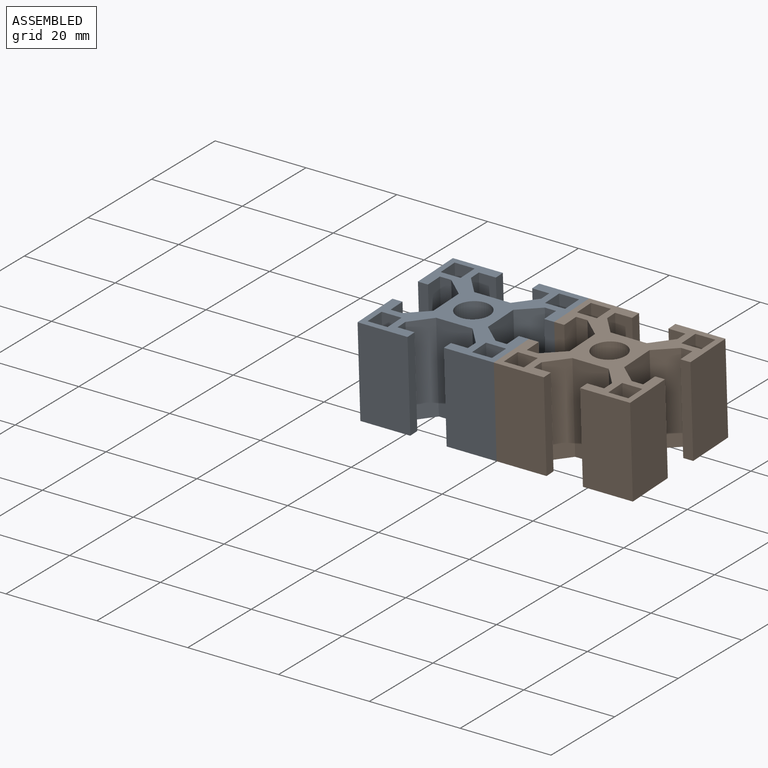
[diagram: assembled view]
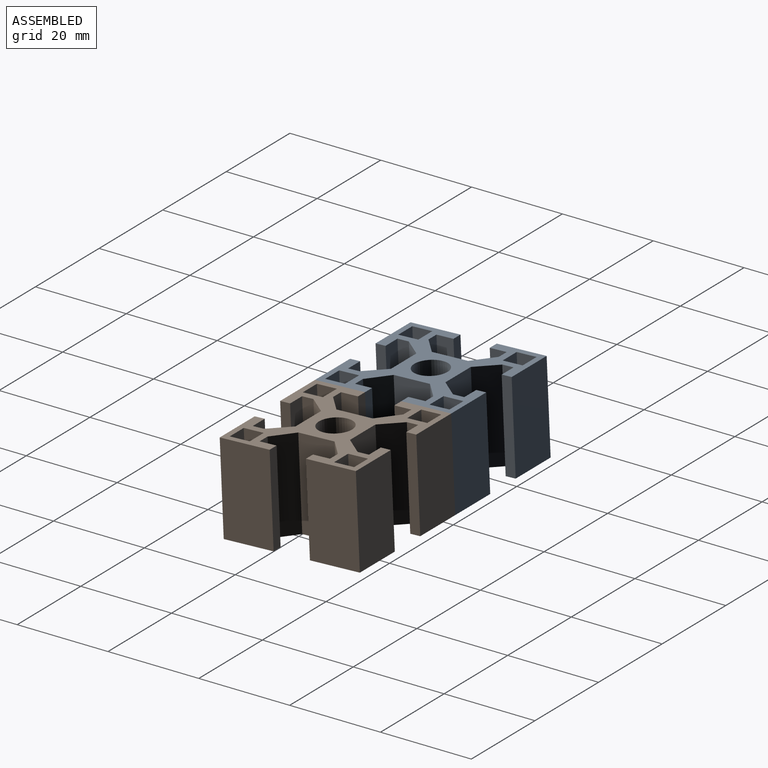
[diagram: assembled view, second angle]
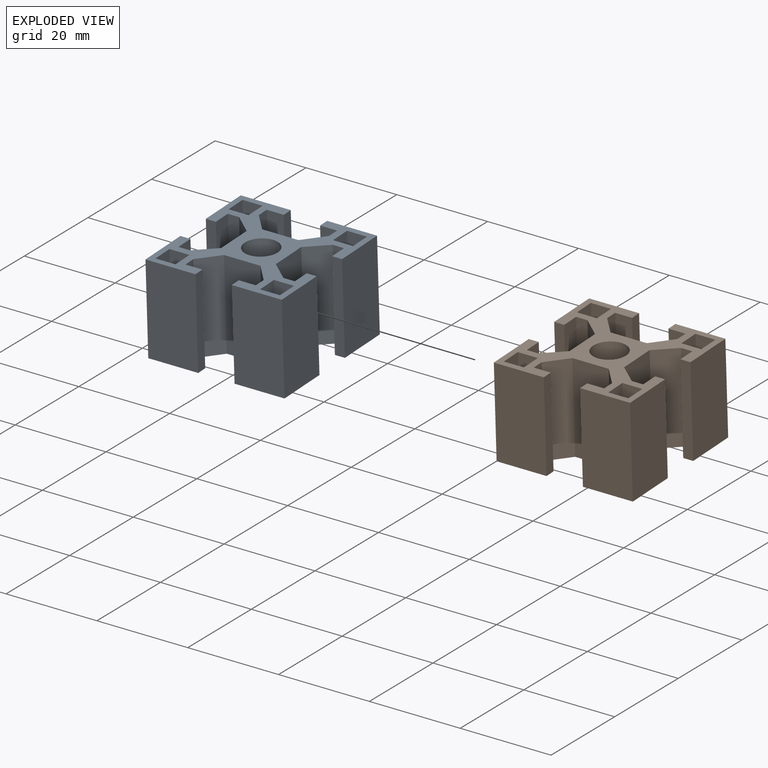
[diagram: exploded view]
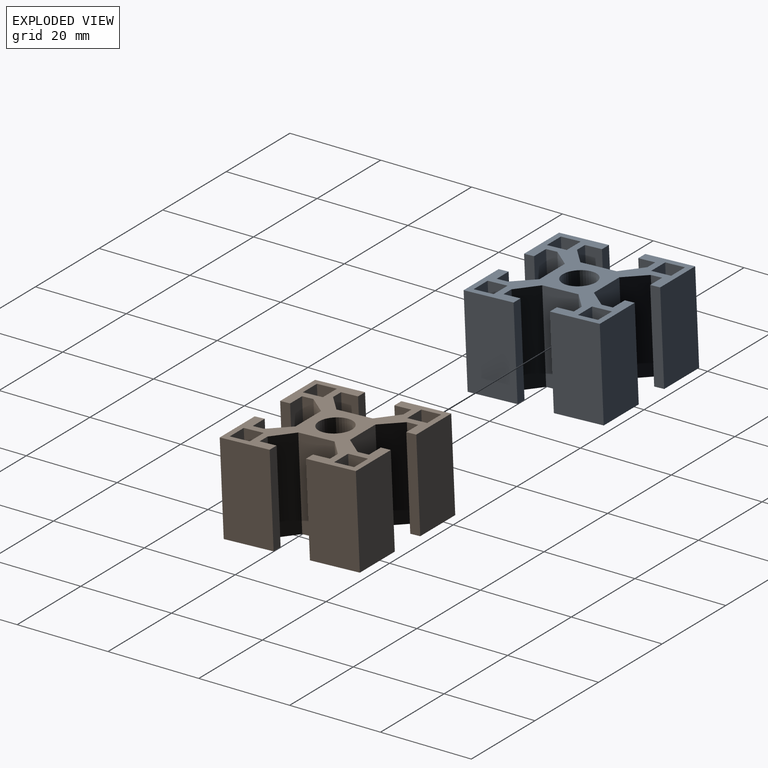
[diagram: exploded view, second angle]
ASSEMBLY  parts=2 mates=3
PART A: 63 faces, bbox 30x30x20 mm
  f0: plane 20x11mm, normal (0,1,0), area 220mm2, adj f1,f2,f3,f4
  f1: plane 30x30mm, normal (0,0,-1), area 353.2mm2, adj f0,f2,f4,f5,f6,f7,f8,f9
  f2: plane 20x2.2mm, normal (1,0,0), area 44mm2, adj f0,f1,f3,f33
  f3: plane 30x30mm, normal (0,0,1), area 353.2mm2, adj f0,f2,f4,f5,f6,f7,f8,f9
  f4: plane 20x11mm, normal (-1,0,0), area 220mm2, adj f0,f1,f3,f34
  f5: plane 20x3.75mm, normal (0,1,0), area 75mm2, adj f1,f3,f6,f45
  f6: plane 20x2.5mm, normal (1,0,0), area 50mm2, adj f1,f3,f5,f7
  f7: plane 20x4.3mm, normal (0.75,-0.66,0), area 114.1mm2, adj f1,f3,f6,f8
  f8: plane 20x8mm, normal (0,-1,0), area 160mm2, adj f1,f3,f7,f9
  f9: plane 20x4.3mm, normal (-0.75,-0.66,0), area 114.1mm2, adj f1,f3,f8,f10
  f10: plane 20x2.5mm, normal (-1,0,0), area 50mm2, adj f1,f3,f9,f11
  f11: plane 20x3.75mm, normal (0,1,0), area 75mm2, adj f1,f3,f10,f12
  f12: plane 20x2.2mm, normal (-1,0,0), area 44mm2, adj f1,f3,f11,f13
  f13: plane 20x11mm, normal (0,-1,0), area 220mm2, adj f1,f3,f12,f14
  f14: plane 20x11mm, normal (1,0,0), area 220mm2, adj f1,f3,f13,f15
  f15: plane 20x2.2mm, normal (0,1,0), area 44mm2, adj f1,f3,f14,f16
  f16: plane 20x3.75mm, normal (-1,0,0), area 75mm2, adj f1,f3,f15,f17
  f17: plane 20x2.5mm, normal (0,1,0), area 50mm2, adj f1,f3,f16,f18
  f18: plane 20x4.3mm, normal (0.66,0.75,0), area 114.1mm2, adj f1,f3,f17,f19
  f19: plane 20x8mm, normal (1,0,0), area 160mm2, adj f1,f3,f18,f20
  f20: plane 20x4.3mm, normal (0.66,-0.75,0), area 114.1mm2, adj f1,f3,f19,f21
  f21: plane 20x2.5mm, normal (0,-1,0), area 50mm2, adj f1,f3,f20,f22
  f22: plane 20x3.75mm, normal (-1,0,0), area 75mm2, adj f1,f3,f21,f23
  f23: plane 20x2.2mm, normal (0,-1,0), area 44mm2, adj f1,f3,f22,f24
  f24: plane 20x11mm, normal (1,0,0), area 220mm2, adj f1,f3,f23,f25
  f25: plane 20x11mm, normal (0,1,0), area 220mm2, adj f1,f3,f24,f26
  f26: plane 20x2.2mm, normal (-1,0,0), area 44mm2, adj f1,f3,f25,f27
  f27: plane 20x3.75mm, normal (0,-1,0), area 75mm2, adj f1,f3,f26,f28
  f28: plane 20x2.5mm, normal (-1,0,0), area 50mm2, adj f1,f3,f27,f29
  f29: plane 20x4.3mm, normal (-0.75,0.66,0), area 114.1mm2, adj f1,f3,f28,f30
  f30: plane 20x8mm, normal (0,1,0), area 160mm2, adj f1,f3,f29,f31
  f31: plane 20x4.3mm, normal (0.75,0.66,0), area 114.1mm2, adj f1,f3,f30,f32
  f32: plane 20x2.5mm, normal (1,0,0), area 50mm2, adj f1,f3,f31,f33
  f33: plane 20x3.75mm, normal (0,-1,0), area 75mm2, adj f1,f2,f3,f32
  f34: plane 20x2.2mm, normal (0,-1,0), area 44mm2, adj f1,f3,f4,f35
  f35: plane 20x3.75mm, normal (1,0,0), area 75mm2, adj f1,f3,f34,f36
  f36: plane 20x2.5mm, normal (0,-1,0), area 50mm2, adj f1,f3,f35,f37
  f37: plane 20x4.3mm, normal (-0.66,-0.75,0), area 114.1mm2, adj f1,f3,f36,f38
  f38: plane 20x8mm, normal (-1,0,0), area 160mm2, adj f1,f3,f37,f39
  f39: plane 20x4.3mm, normal (-0.66,0.75,0), area 114.1mm2, adj f1,f3,f38,f40
  f40: plane 20x2.5mm, normal (0,1,0), area 50mm2, adj f1,f3,f39,f41
  f41: plane 20x3.75mm, normal (1,0,0), area 75mm2, adj f1,f3,f40,f42
  f42: plane 20x2.2mm, normal (0,1,0), area 44mm2, adj f1,f3,f41,f43
  f43: plane 20x11mm, normal (-1,0,0), area 220mm2, adj f1,f3,f42,f44
  f44: plane 20x11mm, normal (0,-1,0), area 220mm2, adj f1,f3,f43,f45
  f45: plane 20x2.2mm, normal (1,0,0), area 44mm2, adj f1,f3,f5,f44
  f46: plane 20x4.4mm, normal (-1,0,0), area 88mm2, adj f1,f3,f47,f48
  f47: plane 20x4.4mm, normal (0,1,0), area 88mm2, adj f1,f3,f46,f49
  f48: plane 20x4.4mm, normal (0,-1,0), area 88mm2, adj f1,f3,f46,f49
  f49: plane 20x4.4mm, normal (1,0,0), area 88mm2, adj f1,f3,f47,f48
  f50: plane 20x4.4mm, normal (-1,0,0), area 88mm2, adj f1,f3,f51,f52
  f51: plane 20x4.4mm, normal (0,1,0), area 88mm2, adj f1,f3,f50,f53
  f52: plane 20x4.4mm, normal (0,-1,0), area 88mm2, adj f1,f3,f50,f53
  f53: plane 20x4.4mm, normal (1,0,0), area 88mm2, adj f1,f3,f51,f52
  f54: cylinder r=3.65mm len=20mm, axis (0,0,-1), area 458.7mm2, adj f1,f3
  f55: plane 20x4.4mm, normal (-1,0,0), area 88mm2, adj f1,f3,f56,f57
  f56: plane 20x4.4mm, normal (0,1,0), area 88mm2, adj f1,f3,f55,f58
  f57: plane 20x4.4mm, normal (0,-1,0), area 88mm2, adj f1,f3,f55,f58
  f58: plane 20x4.4mm, normal (1,0,0), area 88mm2, adj f1,f3,f56,f57
  f59: plane 20x4.4mm, normal (0,-1,0), area 88mm2, adj f1,f3,f60,f61
  f60: plane 20x4.4mm, normal (-1,0,0), area 88mm2, adj f1,f3,f59,f62
  f61: plane 20x4.4mm, normal (1,0,0), area 88mm2, adj f1,f3,f59,f62
  f62: plane 20x4.4mm, normal (0,1,0), area 88mm2, adj f1,f3,f60,f61
PART B: same geometry as A
PLACE A rot(axis=(1,0,0),2.5deg) t=(-11.87,27.66,3.48)mm
PLACE B rot(axis=(1,0,0),2.5deg) t=(18.13,27.66,3.48)mm
MATE planar A.f25 <-> B.f0  axis (0,1,0.04) through (3.13,42.2,14.13)mm
MATE planar A.f1 <-> B.f1  axis (0,0.04,-1) through (3.13,18.17,3.07)mm
MATE planar A.f14 <-> B.f43  axis (1,0,0) through (3.13,17.73,13.06)mm
